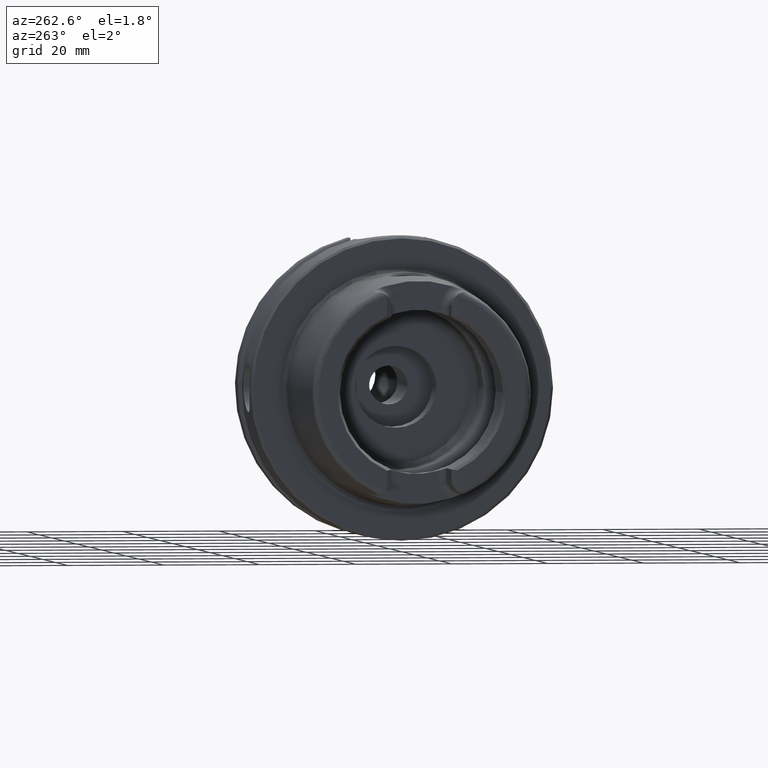
[diagram: clean part render]
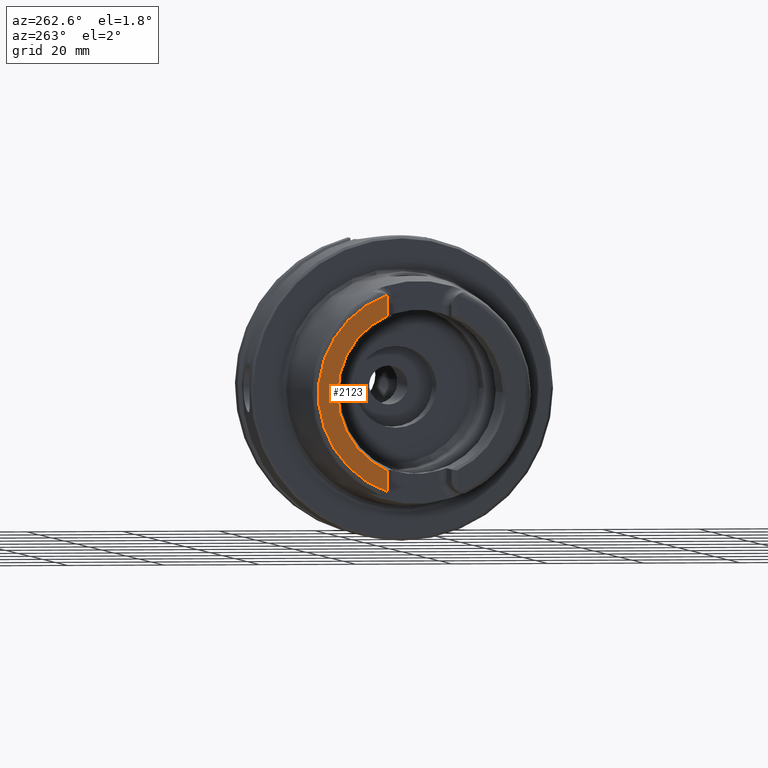
[diagram: same view with one face highlighted and labeled with its STEP entity id]
A machine part, auxiliary view. The second image highlights one B-rep face of the part: STEP entity #2123.
In plain terms, the highlighted planar face has unit normal (-1, 0, 0).
Its self-contained STEP definition (entity closure, byte-faithful):
#141=PLANE('',#2382);
#320=FACE_OUTER_BOUND('',#454,.T.);
#454=EDGE_LOOP('',(#1908,#1909,#1910,#1911,#1912,#1913));
#506=LINE('',#3231,#616);
#516=LINE('',#3324,#626);
#616=VECTOR('',#2577,10.);
#626=VECTOR('',#2615,10.);
#730=CIRCLE('',#2230,2.88);
#736=CIRCLE('',#2245,2.88);
#804=CIRCLE('',#2381,17.5773502691896);
#805=CIRCLE('',#2383,21.5760400159857);
#877=VERTEX_POINT('',#3224);
#880=VERTEX_POINT('',#3229);
#883=VERTEX_POINT('',#3239);
#898=VERTEX_POINT('',#3321);
#899=VERTEX_POINT('',#3323);
#904=VERTEX_POINT('',#3342);
#1104=EDGE_CURVE('',#880,#877,#506,.T.);
#1108=EDGE_CURVE('',#883,#877,#730,.T.);
#1126=EDGE_CURVE('',#898,#899,#516,.T.);
#1133=EDGE_CURVE('',#898,#904,#736,.T.);
#1328=EDGE_CURVE('',#899,#880,#804,.T.);
#1329=EDGE_CURVE('',#883,#904,#805,.T.);
#1908=ORIENTED_EDGE('',*,*,#1104,.F.);
#1909=ORIENTED_EDGE('',*,*,#1328,.F.);
#1910=ORIENTED_EDGE('',*,*,#1126,.F.);
#1911=ORIENTED_EDGE('',*,*,#1133,.T.);
#1912=ORIENTED_EDGE('',*,*,#1329,.F.);
#1913=ORIENTED_EDGE('',*,*,#1108,.T.);
#2123=ADVANCED_FACE('',(#320),#141,.T.);
#2230=AXIS2_PLACEMENT_3D('',#3240,#2585,#2586);
#2245=AXIS2_PLACEMENT_3D('',#3355,#2624,#2625);
#2381=AXIS2_PLACEMENT_3D('',#4471,#2959,#2960);
#2382=AXIS2_PLACEMENT_3D('',#4472,#2961,#2962);
#2383=AXIS2_PLACEMENT_3D('',#4473,#2963,#2964);
#2577=DIRECTION('',(0.,0.,-1.));
#2585=DIRECTION('center_axis',(-1.,0.,0.));
#2586=DIRECTION('ref_axis',(0.,-0.453346760926793,0.891334232685576));
#2615=DIRECTION('',(0.,1.58830189502884E-16,-1.));
#2624=DIRECTION('center_axis',(-1.,0.,0.));
#2625=DIRECTION('ref_axis',(0.,1.,0.));
#2959=DIRECTION('center_axis',(-1.,0.,0.));
#2960=DIRECTION('ref_axis',(0.,-1.,0.));
#2961=DIRECTION('center_axis',(-1.,0.,0.));
#2962=DIRECTION('ref_axis',(0.,0.,1.));
#2963=DIRECTION('center_axis',(1.,0.,0.));
#2964=DIRECTION('ref_axis',(0.,0.,-1.));
#3224=CARTESIAN_POINT('',(-32.,7.27,-20.1717424229271));
#3229=CARTESIAN_POINT('',(-32.,7.27,-16.003447831195));
#3231=CARTESIAN_POINT('',(-32.,7.27,-5.5));
#3239=CARTESIAN_POINT('',(-32.,7.39118810947246,-20.2705658801576));
#3240=CARTESIAN_POINT('Origin',(-32.,9.15,-17.99));
#3321=CARTESIAN_POINT('',(-32.,7.27,20.1717424229271));
#3323=CARTESIAN_POINT('',(-32.,7.27,16.003447831195));
#3324=CARTESIAN_POINT('',(-32.,7.27,8.995));
#3342=CARTESIAN_POINT('',(-32.,7.39118810947246,20.2705658801576));
#3355=CARTESIAN_POINT('Origin',(-32.,9.15,17.99));
#4471=CARTESIAN_POINT('Origin',(-32.,0.,0.));
#4472=CARTESIAN_POINT('Origin',(-32.,21.5760400159857,0.));
#4473=CARTESIAN_POINT('Origin',(-32.,0.,0.));